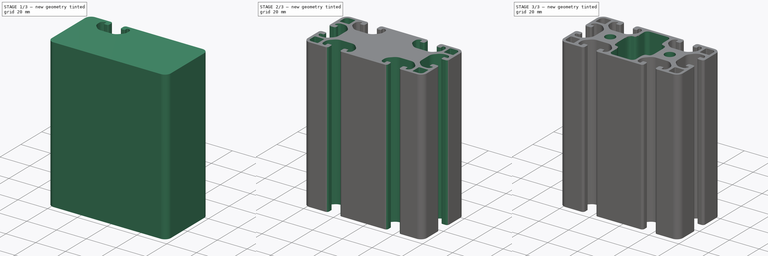
[diagram: build sequence overview — one tinted view per stage of 3, left to right]
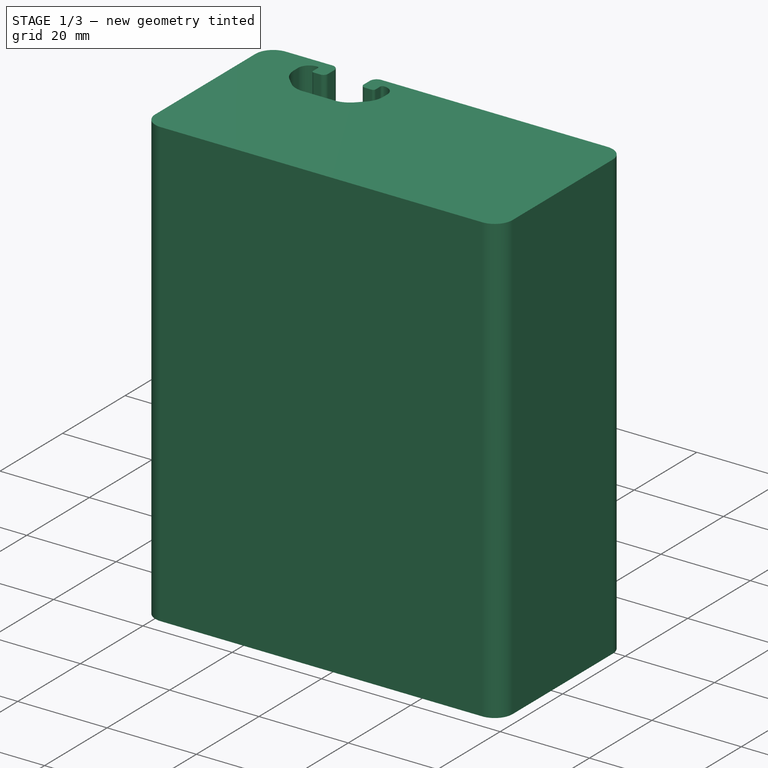
[diagram: stage 1 of 3 — iso view after this stage's code; geometry added in this stage tinted green]
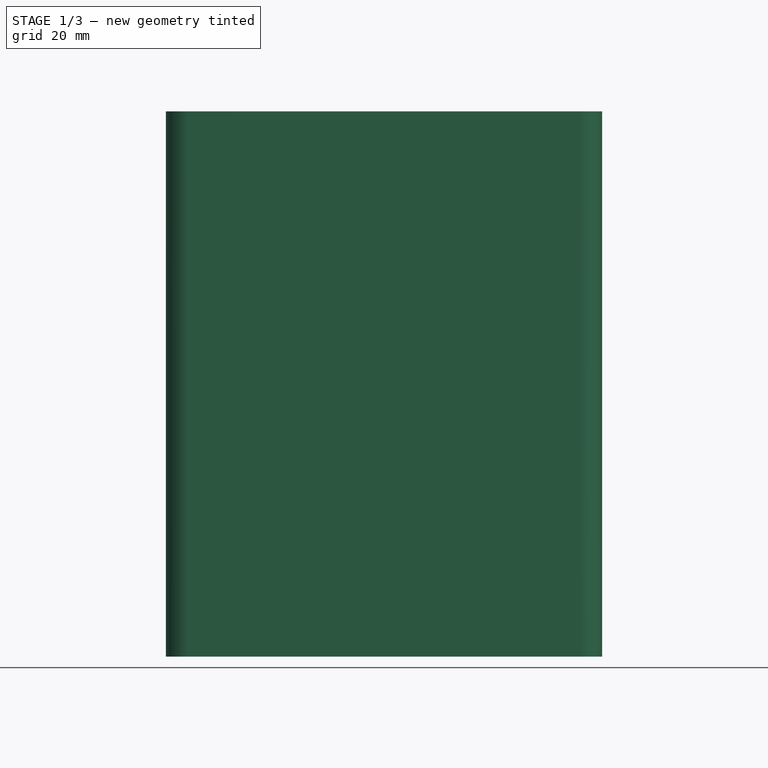
[diagram: stage 1 of 3 — front view after this stage's code; geometry added in this stage tinted green]
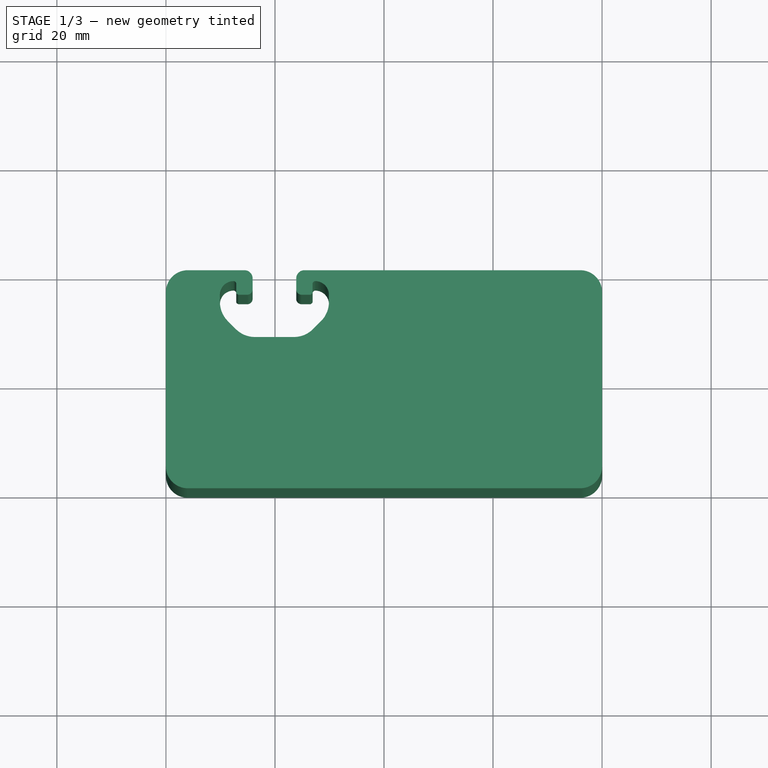
[diagram: stage 1 of 3 — top view after this stage's code; geometry added in this stage tinted green]
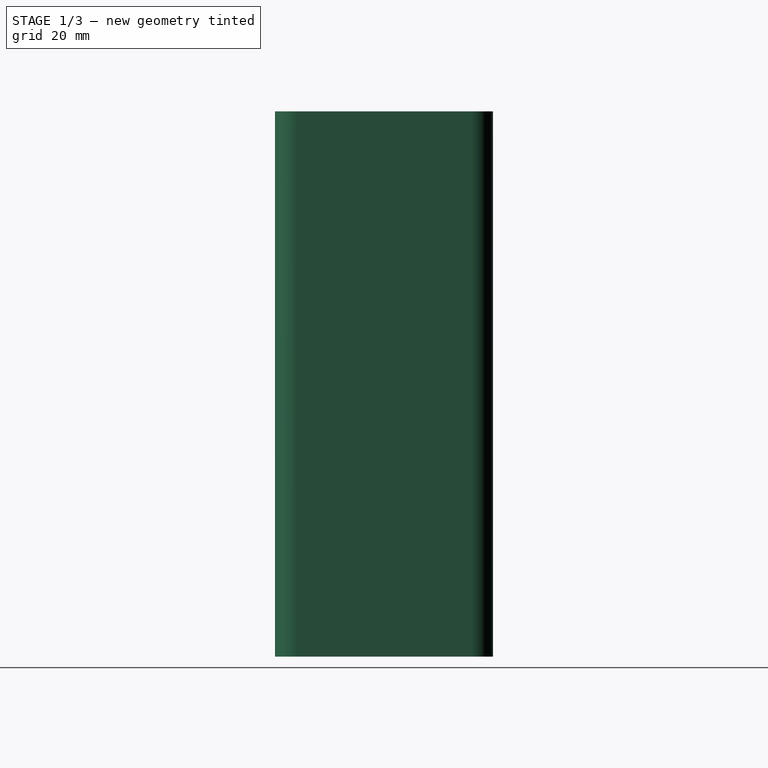
[diagram: stage 1 of 3 — right view after this stage's code; geometry added in this stage tinted green]
FCSTD DOCUMENT  (FreeCAD 1.0R39319 (Git))
Label: Profile-40x80L-I-Type_Slot8
License: All rights reserved
LicenseURL: http://en.wikipedia.org/wiki/All_rights_reserved
objects: Sketcher::SketchObject×6, PartDesign::Pocket×4, PartDesign::Mirrored×3, PartDesign::MultiTransform×2, PartDesign::Pad×1, PartDesign::Line×1, PartDesign::PolarPattern×1, PartDesign::Body×1
note: 41 computed .brp shape members not serialized (recipe doc carries the construction recipe); baked Part::Feature solids carry a one-line shape summary decoded from their .brp

FEATURE [Sketcher::SketchObject] Sketch
  ArcFitTolerance = 0
  AttachmentSupport = -> [XY_Plane]
  FullyConstrained = true
  MakeInternals = false
  MapMode = 5
  sketch-geometry (8):
    g0: LineSegment StartX=-36 StartY=20 StartZ=0 EndX=36 EndY=20 EndZ=0
    g1: LineSegment StartX=40 StartY=16 StartZ=0 EndX=40 EndY=-16 EndZ=0
    g2: LineSegment StartX=36 StartY=-20 StartZ=0 EndX=-36 EndY=-20 EndZ=0
    g3: LineSegment StartX=-40 StartY=-16 StartZ=0 EndX=-40 EndY=16 EndZ=0
    g4: ArcOfCircle CenterX=-36 CenterY=16 CenterZ=0 NormalX=0 NormalY=0 NormalZ=1 AngleXU=0 Radius=4 StartAngle=1.5708 EndAngle=3.14159
    g5: ArcOfCircle CenterX=36 CenterY=16 CenterZ=0 NormalX=0 NormalY=0 NormalZ=1 AngleXU=0 Radius=4 StartAngle=-1.42e-14 EndAngle=1.5708
    g6: ArcOfCircle CenterX=36 CenterY=-16 CenterZ=0 NormalX=0 NormalY=0 NormalZ=1 AngleXU=0 Radius=4 StartAngle=4.71239 EndAngle=6.28319
    g7: ArcOfCircle CenterX=-36 CenterY=-16 CenterZ=0 NormalX=0 NormalY=0 NormalZ=1 AngleXU=0 Radius=4 StartAngle=3.14159 EndAngle=4.71239
  constraints (18):
    c: Horizontal(g0)
    c: Horizontal(g2)
    c: Vertical(g1)
    c: Tangent(g0,g4) = 1.5708
    c: Tangent(g3,g4) = 1.5708
    c: Tangent(g0,g5) = 1.5708
    c: Tangent(g1,g5) = 1.5708
    c: Tangent(g1,g6) = 1.5708
    c: Tangent(g2,g6) = 1.5708
    c: Tangent(g3,g7) = 1.5708
    c: Tangent(g2,g7) = 1.5708
    c: Symmetric(g3,g1,g-2)
    c: Symmetric(g3,g3,g-1)
    c: Equal(g5,g7)
    c: Equal(g7,g6)
    c: DistanceX(g3,g1) = 80
    c: Radius(g4) = 4
    c: DistanceY(g2,g0) = 40
FEATURE [PartDesign::Pad] Pad  label="Solid_Material"
  AllowMultiFace = false
  Direction = (0,0,1)
  Length = 100
  Length2 = 100
  Profile = -> Sketch
  Suppressed = false
  Type = 0
  expr: Length = 100 mm
FEATURE [Sketcher::SketchObject] Sketch001
  ArcFitTolerance = 0
  AttachmentSupport = -> [Pad]
  ExternalGeometry = -> [Pad]
  FullyConstrained = true
  MakeInternals = false
  MapMode = 5
  Placement = pos=(0,0,100) rot=(0,0,1;0rad)
  sketch-geometry (26):
    g0: ArcOfCircle CenterX=-25.6 CenterY=18.5 CenterZ=0 NormalX=0 NormalY=0 NormalZ=1 AngleXU=0 Radius=1.5 StartAngle=-9e-16 EndAngle=1.5708
    g1: LineSegment StartX=-24.1 StartY=18.5 StartZ=0 EndX=-24.1 EndY=16.5 EndZ=0
    g2: ArcOfCircle CenterX=-25.1 CenterY=16.5 CenterZ=0 NormalX=0 NormalY=0 NormalZ=1 AngleXU=0 Radius=1 StartAngle=4.71239 EndAngle=6.28319
    g3: LineSegment StartX=-25.1 StartY=15.5 StartZ=0 EndX=-26.6 EndY=15.5 EndZ=0
    g4: ArcOfCircle CenterX=-26.6 CenterY=16 CenterZ=0 NormalX=0 NormalY=0 NormalZ=1 AngleXU=0 Radius=0.5 StartAngle=3.14159 EndAngle=4.71239
    g5: LineSegment StartX=-27.1 StartY=16 StartZ=0 EndX=-27.1 EndY=17.5 EndZ=0
    g6: ArcOfCircle CenterX=-27.6 CenterY=17.5 CenterZ=0 NormalX=0 NormalY=0 NormalZ=1 AngleXU=0 Radius=0.5 StartAngle=2.5e-15 EndAngle=1.57079
    g7: ArcOfCircle CenterX=-27.6 CenterY=15.5 CenterZ=0 NormalX=0 NormalY=0 NormalZ=1 AngleXU=0 Radius=2.5 StartAngle=1.57079 EndAngle=3.14159
    g8: LineSegment StartX=-30.1 StartY=15.5 StartZ=0 EndX=-30.1 EndY=14.19 EndZ=0
    g9: ArcOfCircle CenterX=-25.1 CenterY=14.19 CenterZ=0 NormalX=0 NormalY=0 NormalZ=1 AngleXU=0 Radius=5 StartAngle=3.14159 EndAngle=3.92699
    g10: LineSegment StartX=-28.6355 StartY=10.6545 StartZ=0 EndX=-27.1955 EndY=9.21447 EndZ=0
    g11: ArcOfCircle CenterX=-23.66 CenterY=12.75 CenterZ=0 NormalX=0 NormalY=0 NormalZ=1 AngleXU=0 Radius=5 StartAngle=3.92699 EndAngle=4.71239
    g12: LineSegment StartX=-23.66 StartY=7.75 StartZ=0 EndX=-16.54 EndY=7.75 EndZ=0
    g13: ArcOfCircle CenterX=-16.54 CenterY=12.75 CenterZ=0 NormalX=0 NormalY=0 NormalZ=1 AngleXU=0 Radius=5 StartAngle=4.71239 EndAngle=5.49779
    g14: LineSegment StartX=-13.0045 StartY=9.21447 StartZ=0 EndX=-11.5645 EndY=10.6545 EndZ=0
    g15: ArcOfCircle CenterX=-15.1 CenterY=14.19 CenterZ=0 NormalX=0 NormalY=0 NormalZ=1 AngleXU=0 Radius=5 StartAngle=5.49779 EndAngle=6.28319
    g16: LineSegment StartX=-10.1 StartY=14.19 StartZ=0 EndX=-10.1 EndY=15.5 EndZ=0
    g17: ArcOfCircle CenterX=-12.6 CenterY=15.5 CenterZ=0 NormalX=0 NormalY=0 NormalZ=1 AngleXU=0 Radius=2.5 StartAngle=0 EndAngle=1.57079
    g18: ArcOfCircle CenterX=-12.6 CenterY=17.5 CenterZ=0 NormalX=0 NormalY=0 NormalZ=1 AngleXU=0 Radius=0.5 StartAngle=1.57079 EndAngle=3.14159
    g19: LineSegment StartX=-13.1 StartY=17.5 StartZ=0 EndX=-13.1 EndY=16 EndZ=0
    g20: ArcOfCircle CenterX=-13.6 CenterY=16 CenterZ=0 NormalX=0 NormalY=0 NormalZ=1 AngleXU=0 Radius=0.5 StartAngle=4.71239 EndAngle=6.28319
    g21: LineSegment StartX=-13.6 StartY=15.5 StartZ=0 EndX=-15.1 EndY=15.5 EndZ=0
    g22: ArcOfCircle CenterX=-15.1 CenterY=16.5 CenterZ=0 NormalX=0 NormalY=0 NormalZ=1 AngleXU=0 Radius=1 StartAngle=3.14159 EndAngle=4.71239
    g23: LineSegment StartX=-16.1 StartY=16.5 StartZ=0 EndX=-16.1 EndY=18.5 EndZ=0
    g24: ArcOfCircle CenterX=-14.6 CenterY=18.5 CenterZ=0 NormalX=0 NormalY=0 NormalZ=1 AngleXU=0 Radius=1.5 StartAngle=1.5708 EndAngle=3.14159
    g25: LineSegment StartX=-14.6 StartY=20 StartZ=0 EndX=-25.6 EndY=20 EndZ=0
  constraints (68):
    c: PointOnObject(g0,g-3)
    c: Tangent(g-3,g0)
    c: Tangent(g0,g1) = 1.5708
    c: Vertical(g1)
    c: Tangent(g1,g2) = 1.5708
    c: Tangent(g2,g3) = 1.5708
    c: Tangent(g3,g4) = 1.5708
    c: Tangent(g4,g5) = 1.5708
    c: Tangent(g5,g6) = -1.5708
    c: Tangent(g6,g7) = -1.5708
    c: Tangent(g7,g8) = -1.5708
    c: Tangent(g8,g9) = -1.5708
    c: Tangent(g9,g10) = -1.5708
    c: Tangent(g10,g11) = -1.5708
    c: Tangent(g11,g12) = -1.5708
    c: Tangent(g12,g13) = -1.5708
    c: Tangent(g13,g14) = -1.5708
    c: Tangent(g14,g15) = -1.5708
    c: Tangent(g15,g16) = -1.5708
    c: Tangent(g16,g17) = -1.5708
    c: Tangent(g17,g18) = -1.5708
    c: Tangent(g18,g19) = -1.5708
    c: Tangent(g19,g20) = 1.5708
    c: Tangent(g20,g21) = 1.5708
    c: Tangent(g21,g22) = 1.5708
    c: Tangent(g22,g23) = 1.5708
    c: Tangent(g23,g24) = 1.5708
    c: Vertical(g23)
    c: Horizontal(g21)
    c: Horizontal(g3)
    c: Vertical(g5)
    c: Vertical(g19)
    c: Radius(g0) = 1.5
    c: Radius(g2) = 1
    c: Equal(g2,g22)
    c: Equal(g0,g24)
    c: Tangent(g-3,g24)
    c: Coincident(g25,g0)
    c: Coincident(g25,g24)
    c: Equal(g1,g23)
    c: DistanceY(g1,g1) = 2
    c: Equal(g3,g21)
    c: Radius(g4) = 0.5
    c: Radius(g6) = 0.5
    c: DistanceX(g3,g3) = 1.5
    c: DistanceX(g0,g23) = 8
    c: Equal(g4,g20)
    c: Equal(g6,g18)
    c: DistanceY(g5,g5) = 1.5
    c: Equal(g5,g19)
    c: Radius(g7) = 2.5
    c: Equal(g7,g17)
    c: Radius(g9) = 5
    c: Radius(g11) = 5
    c: Vertical(g8)
    c: Equal(g11,g13)
    c: Equal(g9,g15)
    c: DistanceX(g12,g12) = 7.12
    c: DistanceY(g8,g8) = 1.31
    c: Equal(g8,g16)
    c: DistanceY(g12,g24) = 12.25
    c: DistanceX(g7,g16) = 20
    c: Vertical(g16)
    c: Horizontal(g12)
    c: Horizontal(g25)
    c: Angle(g12,g10) = 2.35619
    c: Angle(g14,g12) = 2.35619
    c: DistanceX(g8,g-1) = 30.1
FEATURE [PartDesign::Pocket] Pocket
  AllowMultiFace = false
  BaseFeature = -> Pad
  Direction = (0,0,-1)
  Length = 5
  Length2 = 100
  Profile = -> Sketch001
  Suppressed = false
  Type = 1
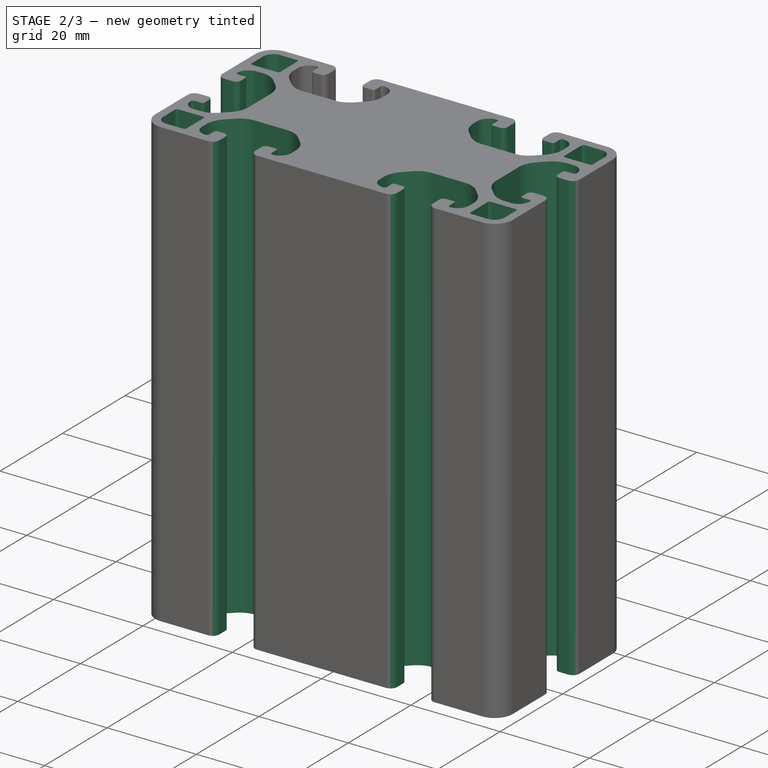
[diagram: stage 2 of 3 — iso view after this stage's code; geometry added in this stage tinted green]
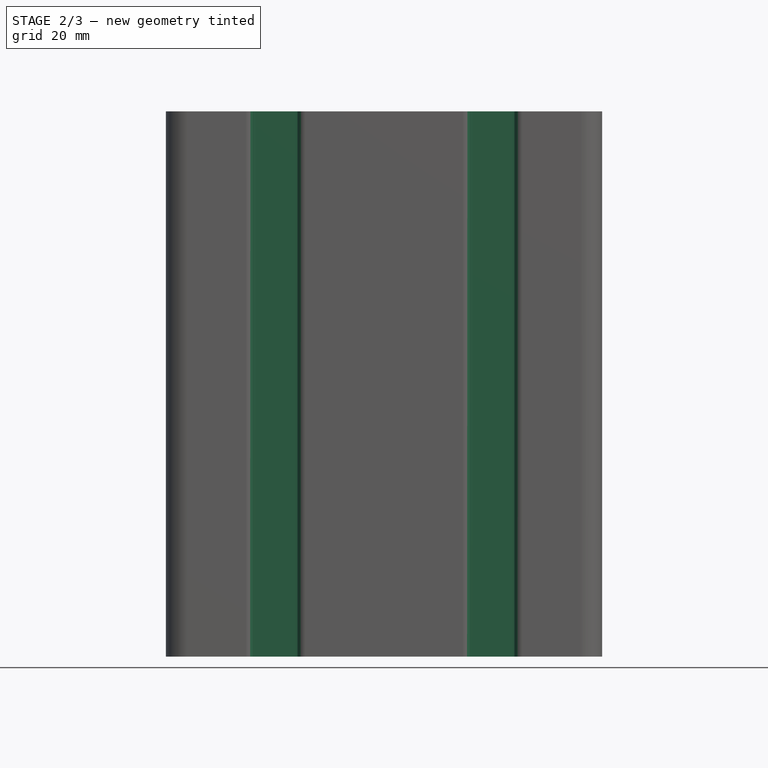
[diagram: stage 2 of 3 — front view after this stage's code; geometry added in this stage tinted green]
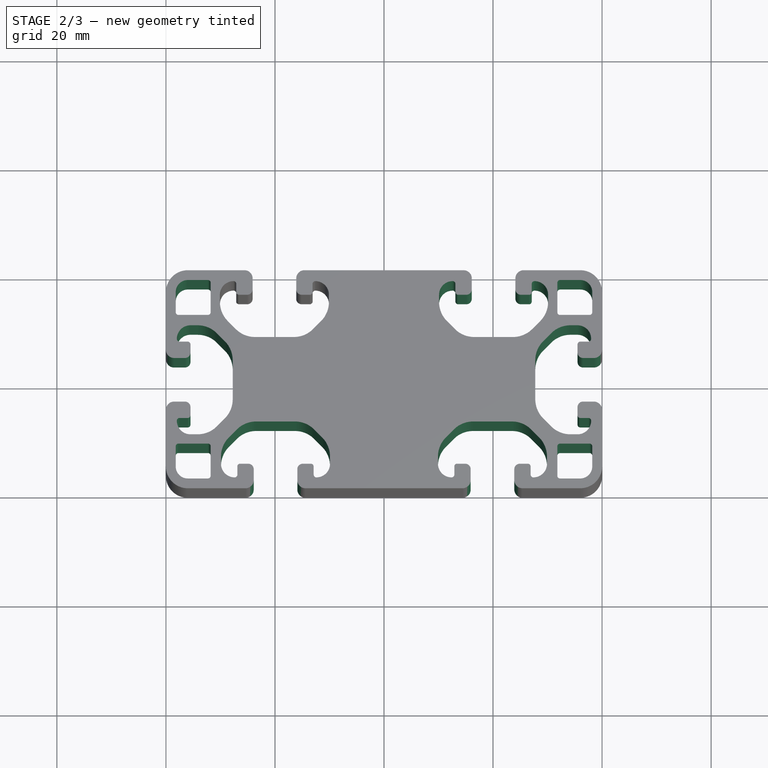
[diagram: stage 2 of 3 — top view after this stage's code; geometry added in this stage tinted green]
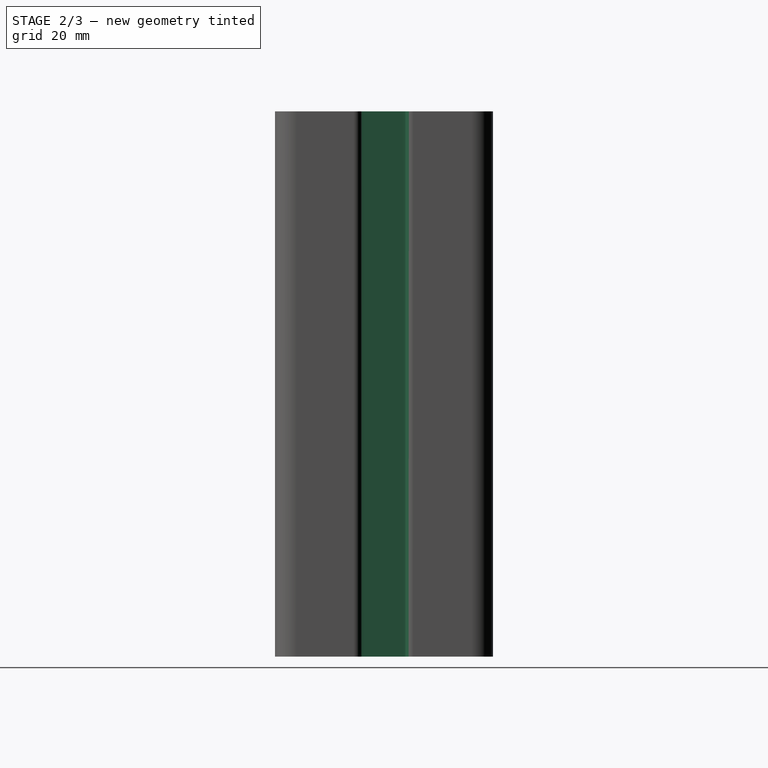
[diagram: stage 2 of 3 — right view after this stage's code; geometry added in this stage tinted green]
FEATURE [Sketcher::SketchObject] Sketch003
  ArcFitTolerance = 1e-06
  AttachmentOffset = pos=(0,0,100) rot=(0,0,1;0rad)
  AttachmentSupport = -> [XY_Plane]
  FullyConstrained = true
  MakeInternals = false
  MapMode = 5
  Placement = pos=(0,0,100) rot=(0,0,1;0rad)
  sketch-geometry (8):
    g0: LineSegment StartX=-36 StartY=18.2 StartZ=0 EndX=-32.3 EndY=18.2 EndZ=0
    g1: LineSegment StartX=-31.8 StartY=17.7 StartZ=0 EndX=-31.8 EndY=12.3 EndZ=0
    g2: LineSegment StartX=-32.3 StartY=11.8 StartZ=0 EndX=-37.7 EndY=11.8 EndZ=0
    g3: LineSegment StartX=-38.2 StartY=12.3 StartZ=0 EndX=-38.2 EndY=16 EndZ=0
    g4: ArcOfCircle CenterX=-36 CenterY=16 CenterZ=0 NormalX=0 NormalY=0 NormalZ=1 AngleXU=0 Radius=2.2 StartAngle=1.5708 EndAngle=3.14159
    g5: ArcOfCircle CenterX=-37.7 CenterY=12.3 CenterZ=0 NormalX=0 NormalY=0 NormalZ=1 AngleXU=0 Radius=0.5 StartAngle=3.14159 EndAngle=4.71239
    g6: ArcOfCircle CenterX=-32.3 CenterY=12.3 CenterZ=0 NormalX=0 NormalY=0 NormalZ=1 AngleXU=0 Radius=0.5 StartAngle=4.71239 EndAngle=6.28319
    g7: ArcOfCircle CenterX=-32.3 CenterY=17.7 CenterZ=0 NormalX=0 NormalY=0 NormalZ=1 AngleXU=0 Radius=0.5 StartAngle=0 EndAngle=1.5708
  constraints (20):
    c: Horizontal(g0)
    c: Horizontal(g2)
    c: Vertical(g1)
    c: Vertical(g3)
    c: Tangent(g0,g4) = 1.5708
    c: Tangent(g3,g4) = 1.5708
    c: Tangent(g3,g5) = 1.5708
    c: Tangent(g2,g5) = 1.5708
    c: Tangent(g2,g6) = 1.5708
    c: Tangent(g1,g6) = 1.5708
    c: Tangent(g0,g7) = 1.5708
    c: Tangent(g1,g7) = 1.5708
    c: Radius(g7) = 0.5
    c: Radius(g4) = 2.2
    c: DistanceX(g3,g1) = 6.4
    c: DistanceY(g2,g0) = 6.4
    c: Equal(g7,g6)
    c: Equal(g6,g5)
    c: DistanceX(g3,g-1) = 38.2
    c: DistanceY(g-1,g0) = 18.2
FEATURE [PartDesign::Pocket] Pocket001
  BaseFeature = -> Pocket
  Direction = (0,0,-1)
  Length = 100
  Length2 = 5
  Profile = -> Sketch003
  ReferenceAxis = -> Sketch003 [N_Axis]
  Refine = true
  Suppressed = false
  Type = 1
FEATURE [Sketcher::SketchObject] Sketch004
  ArcFitTolerance = 1e-06
  AttachmentSupport = -> [XY_Plane]
  FullyConstrained = true
  MakeInternals = false
  MapMode = 5
  sketch-geometry (1):
    g0: GeomPoint X=-20 Y=0 Z=0
  constraints (2):
    c: PointOnObject(g0,g-1)
    c: DistanceX(g0,g-1) = 20
FEATURE [PartDesign::Line] DatumLine
  AttacherType = Attacher::AttachEngineLine
  AttachmentOffset = pos=(-20,0,0) rot=(0,0,1;0rad)
  AttachmentSupport = -> [Sketch004]
  Length = 20
  MapMode = 18
  Placement = pos=(-20,0,0) rot=(0,0,1;0rad)
  ResizeMode = 0
FEATURE [PartDesign::PolarPattern] PolarPattern
  Angle = 180
  Axis = -> DatumLine
  Mode = 0
  Occurrences = 3
  Offset = 120
  Refine = true
  Suppressed = false
  TransformMode = 0
FEATURE [PartDesign::Mirrored] Mirrored
  MirrorPlane = -> YZ_Plane
  Refine = true
  Suppressed = false
  TransformMode = 0
FEATURE [PartDesign::MultiTransform] MultiTransform
  BaseFeature = -> Pocket001
  Originals = -> [Pocket]
  Refine = true
  Suppressed = false
  TransformMode = 0
  Transformations = -> [PolarPattern,Mirrored]
FEATURE [PartDesign::Mirrored] Mirrored001
  MirrorPlane = -> XZ_Plane
  Refine = true
  Suppressed = false
  TransformMode = 0
FEATURE [PartDesign::Mirrored] Mirrored002
  MirrorPlane = -> YZ_Plane
  Refine = true
  Suppressed = false
  TransformMode = 0
FEATURE [PartDesign::MultiTransform] MultiTransform001
  BaseFeature = -> MultiTransform
  Originals = -> [Pocket001]
  Refine = true
  Suppressed = false
  TransformMode = 0
  Transformations = -> [Mirrored001,Mirrored002]
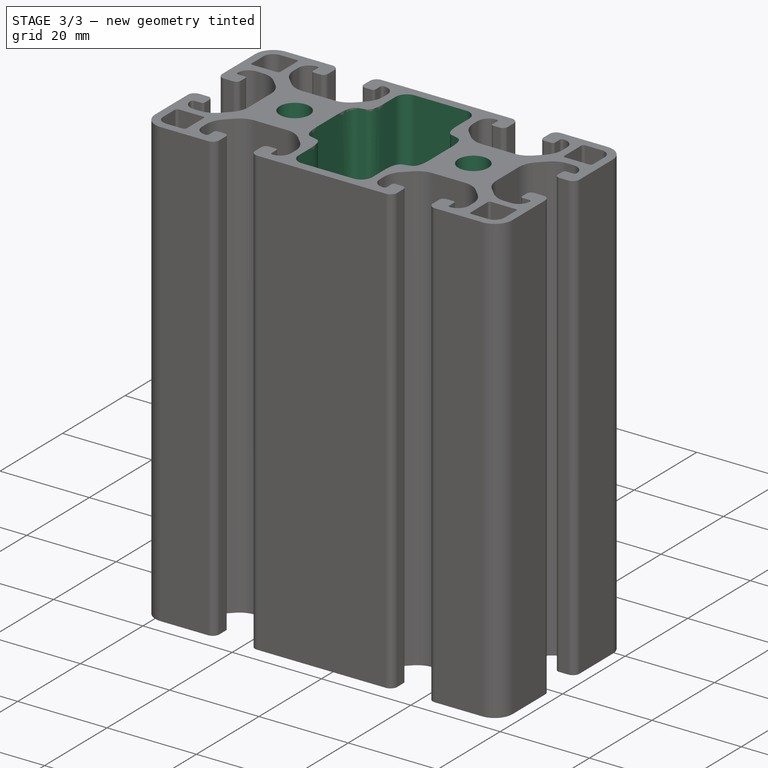
[diagram: stage 3 of 3 — iso view after this stage's code; geometry added in this stage tinted green]
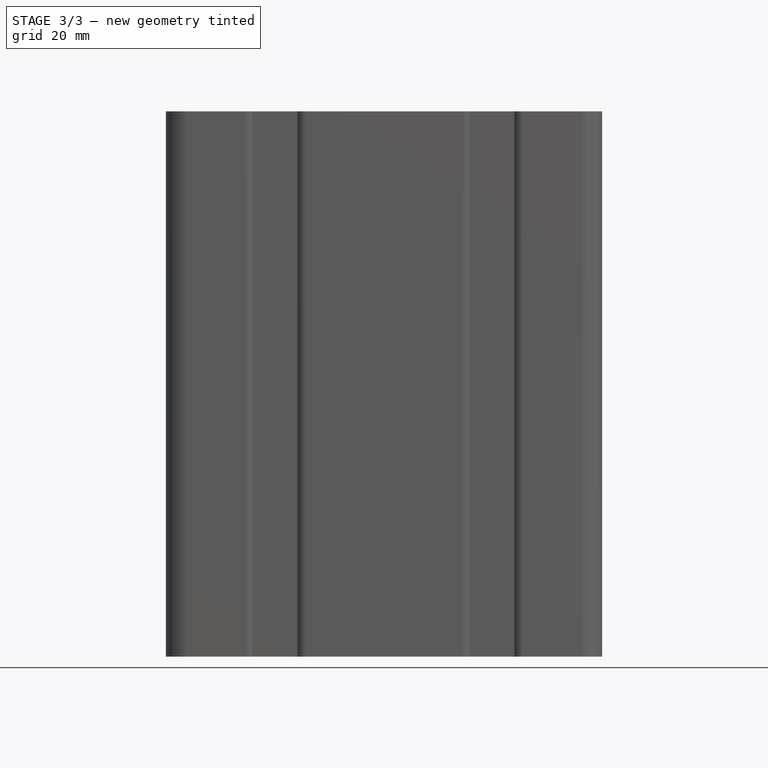
[diagram: stage 3 of 3 — front view after this stage's code; geometry added in this stage tinted green]
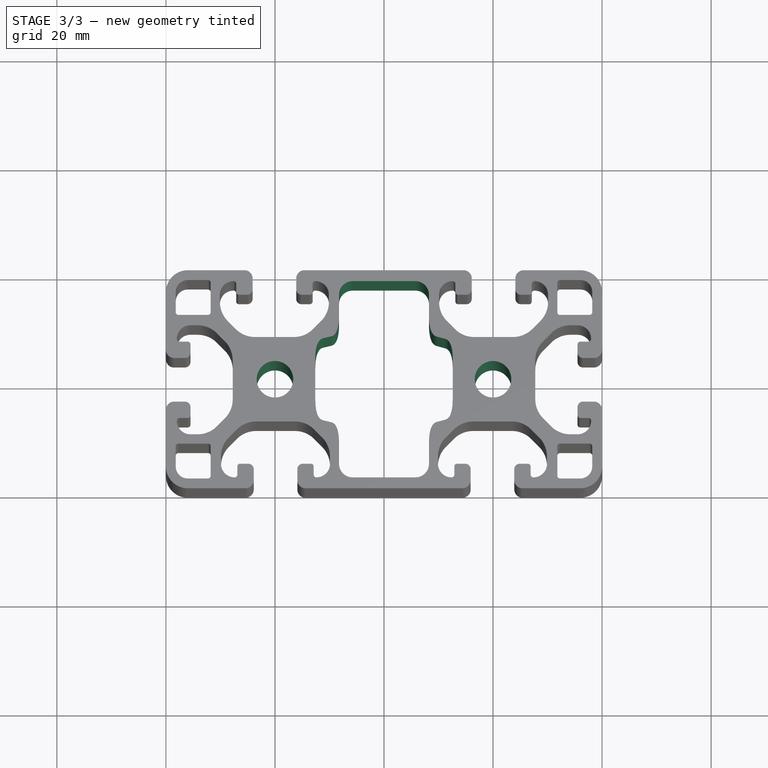
[diagram: stage 3 of 3 — top view after this stage's code; geometry added in this stage tinted green]
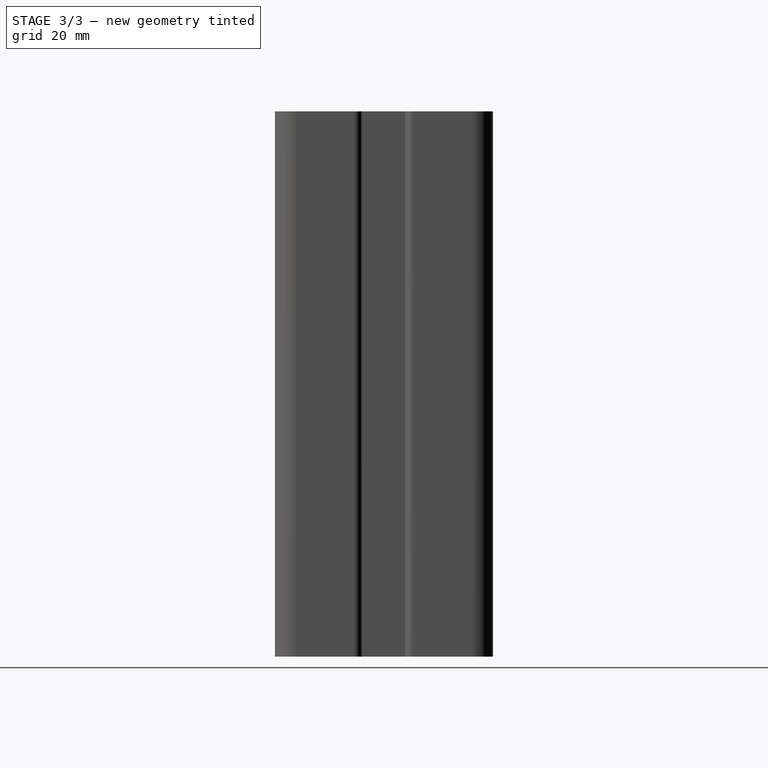
[diagram: stage 3 of 3 — right view after this stage's code; geometry added in this stage tinted green]
FEATURE [Sketcher::SketchObject] Sketch005
  ArcFitTolerance = 1e-06
  AttachmentSupport = -> [XY_Plane]
  FullyConstrained = true
  MakeInternals = false
  MapMode = 5
  sketch-geometry (64):
    g0: LineSegment StartX=-5.75 StartY=-18 StartZ=0 EndX=5.75 EndY=-18 EndZ=0
    g1: LineSegment StartX=-5.75 StartY=18 StartZ=0 EndX=5.75 EndY=18 EndZ=0
    g2: ArcOfCircle CenterX=-5.75 CenterY=-15.5 CenterZ=0 NormalX=0 NormalY=0 NormalZ=1 AngleXU=0 Radius=2.5 StartAngle=3.14159 EndAngle=4.71239
    g3: ArcOfCircle CenterX=5.75 CenterY=-15.5 CenterZ=0 NormalX=0 NormalY=0 NormalZ=1 AngleXU=0 Radius=2.5 StartAngle=4.71239 EndAngle=6.28319
    g4: ArcOfCircle CenterX=5.75 CenterY=15.5 CenterZ=0 NormalX=0 NormalY=0 NormalZ=1 AngleXU=0 Radius=2.5 StartAngle=0 EndAngle=1.5708
    g5: ArcOfCircle CenterX=-5.75 CenterY=15.5 CenterZ=0 NormalX=0 NormalY=0 NormalZ=1 AngleXU=0 Radius=2.5 StartAngle=1.5708 EndAngle=3.14159
    g6: LineSegment StartX=-8.25 StartY=-11.75 StartZ=0 EndX=-8.25 EndY=-15.5 EndZ=0
    g7: LineSegment StartX=8.25 StartY=-11.75 StartZ=0 EndX=8.25 EndY=-15.5 EndZ=0
    g8: LineSegment StartX=-8.25 StartY=15.5 StartZ=0 EndX=-8.25 EndY=11.75 EndZ=0
    g9: LineSegment StartX=8.25 StartY=15.5 StartZ=0 EndX=8.25 EndY=11.75 EndZ=0
    g10: Circle [constr] CenterX=-8.25 CenterY=-11.75 CenterZ=0 NormalX=0 NormalY=0 NormalZ=1 AngleXU=0 Radius=1
    g11: Circle [constr] CenterX=-8.25 CenterY=-8.22 CenterZ=0 NormalX=0 NormalY=0 NormalZ=1 AngleXU=0 Radius=1
    g12: Circle [constr] CenterX=-9.67055 CenterY=-7.88291 CenterZ=0 NormalX=0 NormalY=0 NormalZ=1 AngleXU=0 Radius=1
    g13: BSplineCurve PolesCount=3 KnotsCount=2 Degree=2 IsPeriodic=0
    g14: GeomPoint [constr] X=-8.25 Y=-11.75 Z=0
    g15: GeomPoint [constr] X=-9.67055 Y=-7.88291 Z=0
    g16: Circle [constr] CenterX=8.25 CenterY=-8.22 CenterZ=0 NormalX=0 NormalY=0 NormalZ=1 AngleXU=0 Radius=1
    g17: Circle [constr] CenterX=9.65945 CenterY=-7.83913 CenterZ=0 NormalX=0 NormalY=0 NormalZ=1 AngleXU=0 Radius=1
    g18: BSplineCurve PolesCount=3 KnotsCount=2 Degree=2 IsPeriodic=0
    g19: GeomPoint [constr] X=8.25 Y=-11.75 Z=0
    g20: GeomPoint [constr] X=9.65945 Y=-7.83913 Z=0
    g21: Circle [constr] CenterX=8.25 CenterY=-11.75 CenterZ=0 NormalX=0 NormalY=0 NormalZ=1 AngleXU=0 Radius=1
    g22: Circle [constr] CenterX=-8.25 CenterY=8.22 CenterZ=0 NormalX=0 NormalY=0 NormalZ=1 AngleXU=0 Radius=1
    g23: BSplineCurve PolesCount=3 KnotsCount=2 Degree=2 IsPeriodic=0
    g24: GeomPoint [constr] X=-8.25 Y=11.75 Z=0
    g25: GeomPoint [constr] X=-9.67055 Y=7.88291 Z=0
    g26: Circle [constr] CenterX=-8.25 CenterY=11.75 CenterZ=0 NormalX=0 NormalY=0 NormalZ=1 AngleXU=0 Radius=1
    g27: Circle [constr] CenterX=-9.67055 CenterY=7.88291 CenterZ=0 NormalX=0 NormalY=0 NormalZ=1 AngleXU=0 Radius=1
    g28: BSplineCurve PolesCount=3 KnotsCount=2 Degree=2 IsPeriodic=0
    g29: Circle [constr] CenterX=8.25 CenterY=11.75 CenterZ=0 NormalX=0 NormalY=0 NormalZ=1 AngleXU=0 Radius=1
    g30: Circle [constr] CenterX=8.25 CenterY=8.22 CenterZ=0 NormalX=0 NormalY=0 NormalZ=1 AngleXU=0 Radius=1
    g31: Circle [constr] CenterX=9.65845 CenterY=7.83545 CenterZ=0 NormalX=0 NormalY=0 NormalZ=1 AngleXU=0 Radius=1
    g32: GeomPoint [constr] X=8.25 Y=11.75 Z=0
    g33: GeomPoint [constr] X=9.65845 Y=7.83545 Z=0
    g34: LineSegment StartX=-11.2176 StartY=7.51581 StartZ=0 EndX=-9.67055 EndY=7.88291 EndZ=0
    g35: LineSegment StartX=9.65845 StartY=7.83545 StartZ=0 EndX=11.1923 EndY=7.41666 EndZ=0
    g36: LineSegment StartX=-11.2176 StartY=-7.51581 StartZ=0 EndX=-9.67055 EndY=-7.88291 EndZ=0
    g37: LineSegment StartX=11.1944 StartY=-7.42435 StartZ=0 EndX=9.65945 EndY=-7.83913 EndZ=0
    g38: LineSegment StartX=12.6156 StartY=3.56 StartZ=0 EndX=12.6156 EndY=-3.56 EndZ=0
    g39: LineSegment StartX=-12.6141 StartY=3.56 StartZ=0 EndX=-12.6141 EndY=-3.56 EndZ=0
    g40: BSplineCurve PolesCount=3 KnotsCount=2 Degree=2 IsPeriodic=0
    g41: Circle [constr] CenterX=-12.6141 CenterY=-3.56 CenterZ=0 NormalX=0 NormalY=0 NormalZ=1 AngleXU=0 Radius=1
    g42: Circle [constr] CenterX=-12.6141 CenterY=-7.09 CenterZ=0 NormalX=0 NormalY=0 NormalZ=1 AngleXU=0 Radius=1
    g43: Circle [constr] CenterX=-11.2176 CenterY=-7.51581 CenterZ=0 NormalX=0 NormalY=0 NormalZ=1 AngleXU=0 Radius=1
    g44: GeomPoint [constr] X=-12.6141 Y=-3.56 Z=0
    g45: GeomPoint [constr] X=-11.2176 Y=-7.51581 Z=0
    g46: BSplineCurve PolesCount=3 KnotsCount=2 Degree=2 IsPeriodic=0
    g47: Circle [constr] CenterX=12.6156 CenterY=-3.56 CenterZ=0 NormalX=0 NormalY=0 NormalZ=1 AngleXU=0 Radius=1
    g48: Circle [constr] CenterX=12.6156 CenterY=-7.09 CenterZ=0 NormalX=0 NormalY=0 NormalZ=1 AngleXU=0 Radius=1
    g49: Circle [constr] CenterX=11.1944 CenterY=-7.42435 CenterZ=0 NormalX=0 NormalY=0 NormalZ=1 AngleXU=0 Radius=1
    g50: GeomPoint [constr] X=12.6156 Y=-3.56 Z=0
    g51: GeomPoint [constr] X=11.1944 Y=-7.42435 Z=0
    g52: BSplineCurve PolesCount=3 KnotsCount=2 Degree=2 IsPeriodic=0
    g53: BSplineCurve PolesCount=3 KnotsCount=2 Degree=2 IsPeriodic=0
    g54: Circle [constr] CenterX=-12.6141 CenterY=3.56 CenterZ=0 NormalX=0 NormalY=0 NormalZ=1 AngleXU=0 Radius=1
    g55: Circle [constr] CenterX=-12.6141 CenterY=7.09 CenterZ=0 NormalX=0 NormalY=0 NormalZ=1 AngleXU=0 Radius=1
    g56: Circle [constr] CenterX=-11.2176 CenterY=7.51581 CenterZ=0 NormalX=0 NormalY=0 NormalZ=1 AngleXU=0 Radius=1
    g57: GeomPoint [constr] X=-12.6141 Y=3.56 Z=0
    g58: GeomPoint [constr] X=-11.2176 Y=7.51581 Z=0
    g59: Circle [constr] CenterX=12.6156 CenterY=3.56 CenterZ=0 NormalX=0 NormalY=0 NormalZ=1 AngleXU=0 Radius=1
    g60: Circle [constr] CenterX=12.6153 CenterY=7.09 CenterZ=0 NormalX=0 NormalY=0 NormalZ=1 AngleXU=0 Radius=1
    g61: Circle [constr] CenterX=11.1923 CenterY=7.41666 CenterZ=0 NormalX=0 NormalY=0 NormalZ=1 AngleXU=0 Radius=1
    g62: GeomPoint [constr] X=12.6156 Y=3.56 Z=0
    g63: GeomPoint [constr] X=11.1923 Y=7.41666 Z=0
  constraints (115):
    c: DistanceX(g0,g0) = 11.5
    c: Symmetric(g0,g0,g-2)
    c: DistanceY(g0,g-1) = 18
    c: Equal(g0,g1)
    c: Symmetric(g1,g1,g-2)
    c: DistanceY(g-1,g1) = 18
    c: Radius(g2) = 2.5
    c: Equal(g2,g3)
    c: Equal(g2,g5)
    c: Equal(g2,g4)
    c: Tangent(g2,g0) = -1.5708
    c: Tangent(g3,g0) = -1.5708
    c: Tangent(g5,g1) = 1.5708
    c: Tangent(g4,g1) = 1.5708
    c: Distance(g6,g6) = 3.75
    c: Vertical(g6)
    c: Vertical(g9)
    c: Vertical(g8)
    c: Equal(g6,g8)
    c: Equal(g6,g9)
    c: Equal(g6,g7)
    c: Tangent(g8,g5) = -1.5708
    c: Tangent(g9,g4) = 1.5708
    c: Tangent(g6,g2) = -1.5708
    c: Tangent(g7,g3) = 1.5708
    c: Weight(g10) = 1
    c: Equal(g10,g11)
    c: Equal(g10,g12)
    c: InternalAlignment(g10,g13)
    c: InternalAlignment(g11,g13)
    c: InternalAlignment(g12,g13)
    c: InternalAlignment(g14,g13)
    c: InternalAlignment(g15,g13)
    c: Distance(g10,g11) = 3.53
    c: Distance(g11,g12) = 1.46
    c: Tangent(g13,g6) = 1.5708
    c: Weight(g21) = 1
    c: Equal(g21,g16)
    c: Equal(g21,g17)
    c: InternalAlignment(g21,g18)
    c: InternalAlignment(g16,g18)
    c: InternalAlignment(g17,g18)
    c: InternalAlignment(g19,g18)
    c: InternalAlignment(g20,g18)
    c: Distance(g16,g17) = 1.46
    c: Weight(g26) = 1
    c: Equal(g26,g22)
    c: Equal(g26,g27)
    c: InternalAlignment(g26,g23)
    c: InternalAlignment(g22,g23)
    c: InternalAlignment(g27,g23)
    c: InternalAlignment(g24,g23)
    c: InternalAlignment(g25,g23)
    c: Distance(g26,g22) = 3.53
    c: Weight(g29) = 1
    c: Equal(g29,g30)
    c: Equal(g29,g31)
    c: InternalAlignment(g29-g33 -> g28) x5
    c: Distance(g29,g30) = 3.53
    c: Distance(g30,g31) = 1.46
    c: Tangent(g18,g7) = 1.5708
    c: Tangent(g23,g8) = -1.5708
    c: Tangent(g28,g9) = -1.5708
    c: DistanceX(g13,g18) = 19.33
    c: DistanceX(g23,g28) = 19.329
    c: Distance(g36,g36) = 1.59
    c: Equal(g36,g37)
    c: Equal(g36,g34)
    c: Equal(g36,g35)
    c: Symmetric(g13,g23,g-1)
    c: Symmetric(g11,g16,g-2)
    c: DistanceY(g38,g38) = 7.12
    c: Symmetric(g38,g38,g-1)
    c: Equal(g38,g39)
    c: Symmetric(g39,g39,g-1)
    c: Weight(g41) = 1
    c: Equal(g41,g42)
    c: Equal(g41,g43)
    c: InternalAlignment(g41-g45 -> g40) x5
    c: Distance(g41,g42) = 3.53
    c: Distance(g42,g43) = 1.46
    c: Tangent(g13,g36) = 1.5708
    c: Tangent(g18,g37) = 1.5708
    c: Tangent(g23,g34) = 1.5708
    c: Tangent(g28,g35) = -1.5708
    c: Block(g36)
    c: Coincident(g40,g36)
    c: Block(g37)
    c: Block(g35)
    c: Block(g34)
    c: Weight(g47) = 1
    c: Equal(g47,g48)
    c: Equal(g47,g49)
    c: InternalAlignment(g47-g51 -> g46) x5
    c: Distance(g47,g48) = 3.53
    c: Distance(g48,g49) = 1.46
    c: Weight(g54) = 1
    c: Equal(g54,g55)
    c: Equal(g54,g56)
    c: InternalAlignment(g54-g58 -> g52) x5
    c: Distance(g54,g55) = 3.53
    c: Distance(g55,g56) = 1.46
    c: Weight(g59) = 1
    c: Equal(g59,g60)
    c: Equal(g59,g61)
    c: InternalAlignment(g59-g63 -> g53) x5
    c: Distance(g59,g60) = 3.53
    c: Distance(g60,g61) = 1.46
    c: Coincident(g52,g34)
    c: Coincident(g35,g53)
    c: Coincident(g46,g37)
    c: Coincident(g39,g52)
    c: Coincident(g38,g53)
    c: Tangent(g46,g38) = -1.5708
    c: Tangent(g40,g39) = -1.5708
FEATURE [PartDesign::Pocket] Pocket002
  BaseFeature = -> MultiTransform001
  Direction = (0,0,-1)
  Length = 100
  Length2 = 5
  Profile = -> Sketch005
  ReferenceAxis = -> Sketch005 [N_Axis]
  Refine = true
  Reversed = true
  Suppressed = false
  Type = 1
FEATURE [Sketcher::SketchObject] Sketch006
  ArcFitTolerance = 1e-06
  AttachmentSupport = -> [XY_Plane]
  FullyConstrained = true
  MakeInternals = false
  MapMode = 5
  sketch-geometry (2):
    g0: Circle CenterX=-20 CenterY=0 CenterZ=0 NormalX=0 NormalY=0 NormalZ=1 AngleXU=0 Radius=3.35
    g1: Circle CenterX=20 CenterY=0 CenterZ=0 NormalX=0 NormalY=0 NormalZ=1 AngleXU=0 Radius=3.35
  constraints (6):
    c: PointOnObject(g0,g-1)
    c: DistanceX(g0,g-1) = 20
    c: DistanceX(g-1,g1) = 20
    c: Diameter(g0) = 6.7
    c: Diameter(g1) = 6.7
    c: PointOnObject(g1,g-1)
FEATURE [PartDesign::Pocket] Pocket003
  BaseFeature = -> Pocket002
  Direction = (0,0,-1)
  Length = 100
  Length2 = 5
  Profile = -> Sketch006
  ReferenceAxis = -> Sketch006 [N_Axis]
  Refine = true
  Reversed = true
  Suppressed = false
  Type = 1
FEATURE [PartDesign::Body] Body
  AllowCompound = false
  Group = -> [Sketch,Pad,Sketch001,Pocket,Sketch003,Pocket001,Sketch004,DatumLine,MultiTransform,PolarPattern,Mirrored,MultiTransform001,Mirrored001,Mirrored002,Sketch005,Pocket002,Sketch006,Pocket003]
  Origin = -> Origin
  Tip = -> Pocket003
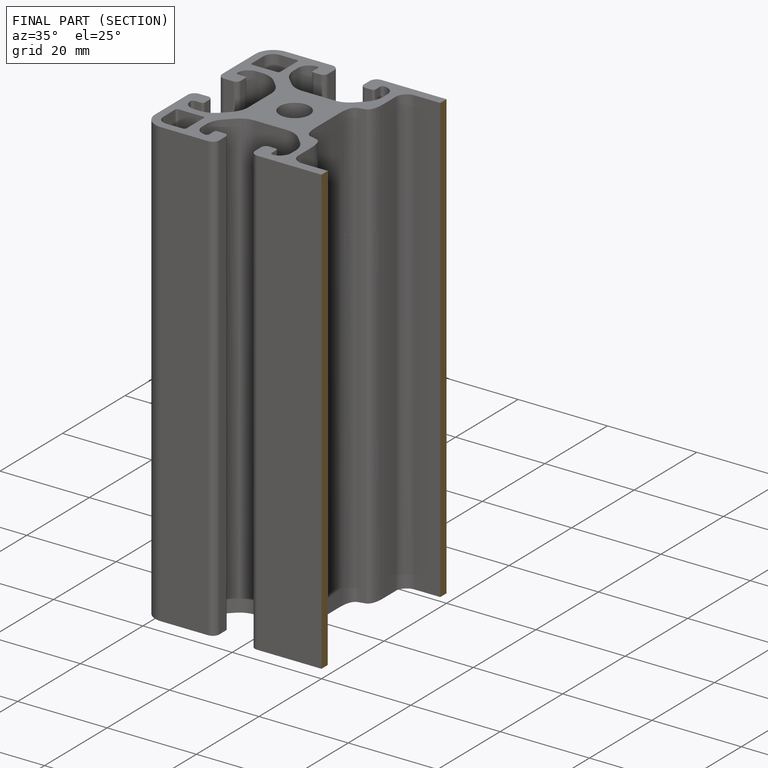
[diagram: finished part — half-section view (interior)]
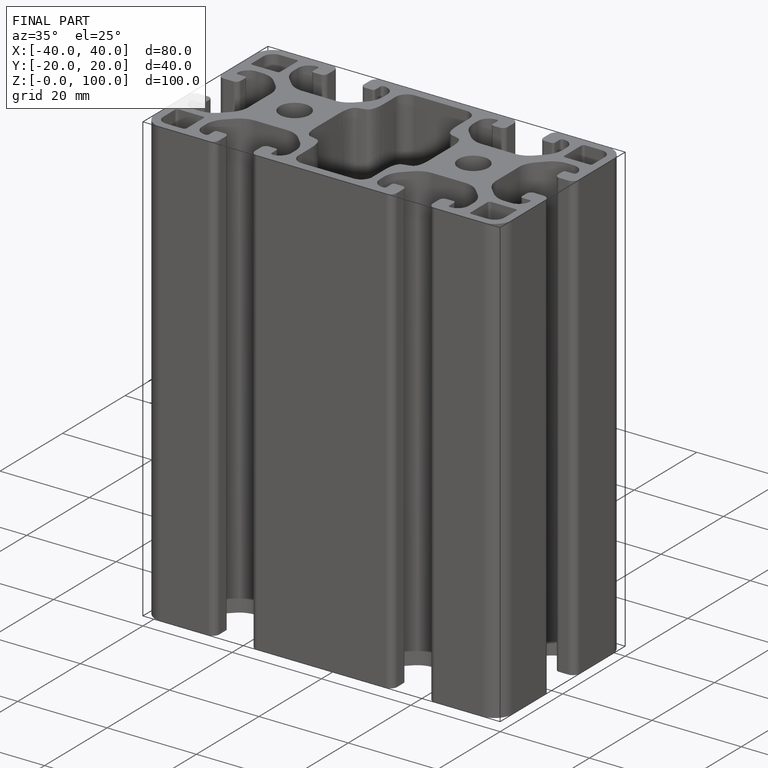
[diagram: finished part — iso view with bounding-box wireframe]
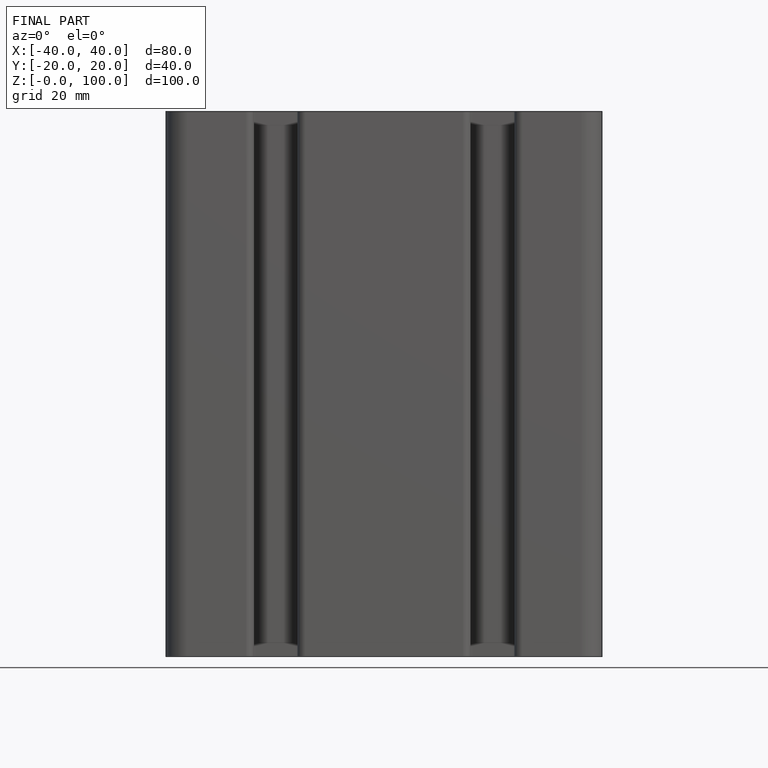
[diagram: finished part — front view with bounding-box wireframe]
